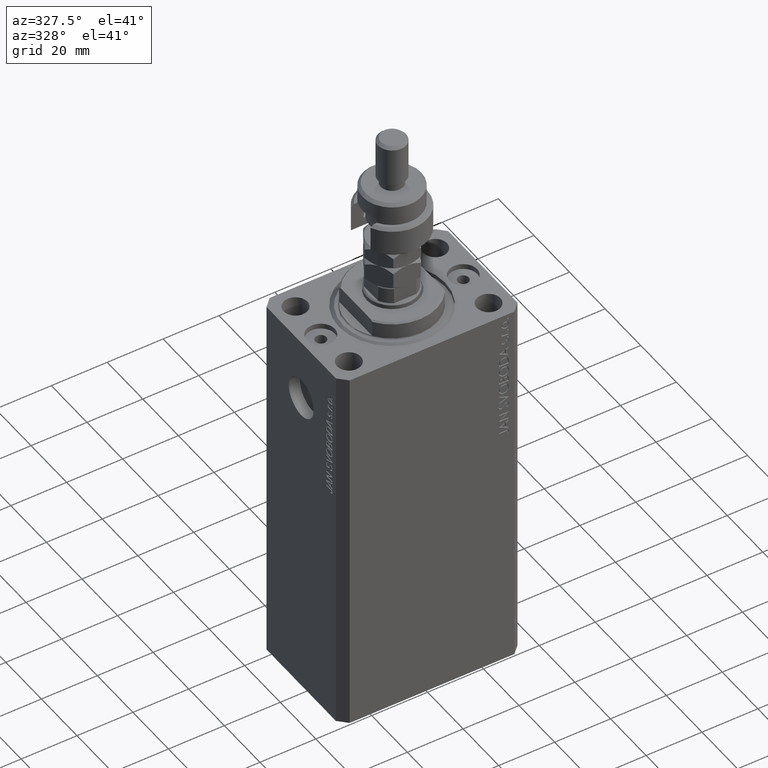
[diagram: clean part render]
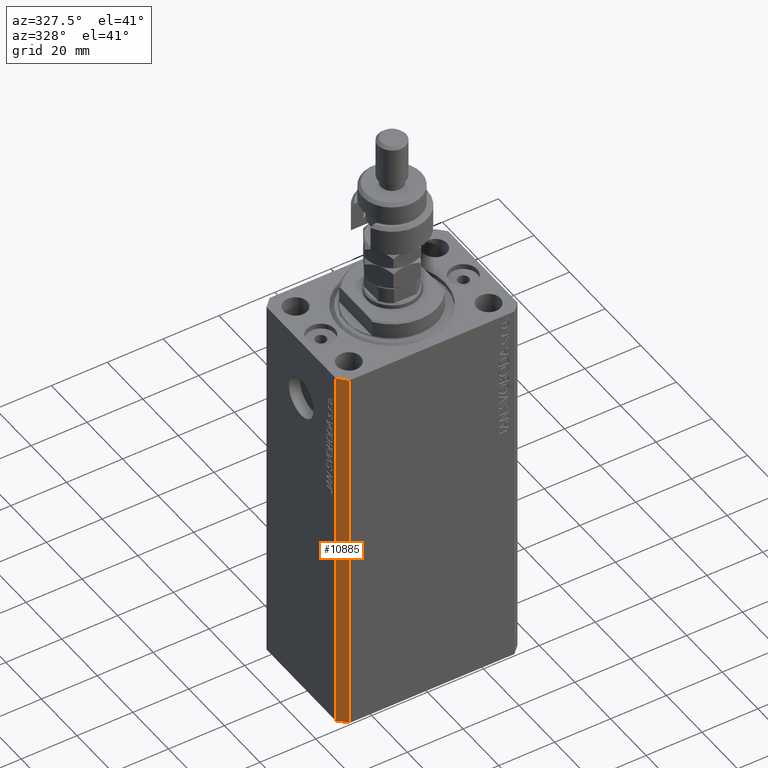
[diagram: same view with one face highlighted and labeled with its STEP entity id]
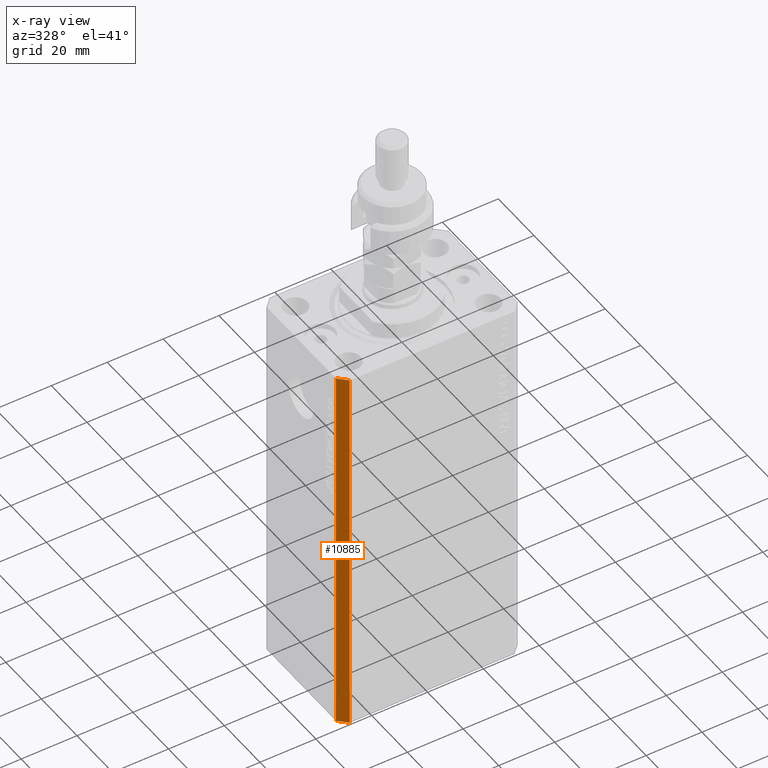
[diagram: x-ray of the same camera — body ghosted, the highlighted face saturated]
A machine part, auxiliary view. The second image highlights one B-rep face of the part: STEP entity #10885.
The next image is the same camera in x-ray: the body ghosted, the highlighted face saturated — about 0% of this face is hidden behind the body in this view.
In plain terms, the highlighted planar face has unit normal (-0.7071, -0.7071, 0).
Its self-contained STEP definition (entity closure, byte-faithful):
#849 = DIRECTION ( 'NONE',  ( 0.7071067811865474617, -0.7071067811865474617, 0.000000000000000000 ) ) ;
#2375 = DIRECTION ( 'NONE',  ( 0.000000000000000000, 0.000000000000000000, 1.000000000000000000 ) ) ;
#2585 = EDGE_CURVE ( 'NONE', #40652, #35811, #6406, .T. ) ;
#3931 = ORIENTED_EDGE ( 'NONE', *, *, #2585, .T. ) ;
#4966 = VECTOR ( 'NONE', #2375, 1000.000000000000000 ) ;
#6406 = LINE ( 'NONE', #6908, #4966 ) ;
#6908 = CARTESIAN_POINT ( 'NONE',  ( -29.49999999999650413, -22.49999999999949907, -137.0000000000000000 ) ) ;
#8014 = VERTEX_POINT ( 'NONE', #49179 ) ;
#9419 = VERTEX_POINT ( 'NONE', #22486 ) ;
#10885 = ADVANCED_FACE ( 'NONE', ( #30455 ), #20560, .T. ) ;
#11066 = CARTESIAN_POINT ( 'NONE',  ( -29.49999999999650413, -22.49999999999949907, -137.0000000000000000 ) ) ;
#11217 = LINE ( 'NONE', #15263, #44896 ) ;
#13018 = EDGE_CURVE ( 'NONE', #8014, #35811, #11217, .T. ) ;
#15263 = CARTESIAN_POINT ( 'NONE',  ( -32.49999999999650413, -19.49999999999949907, 0.000000000000000000 ) ) ;
#18321 = CARTESIAN_POINT ( 'NONE',  ( -32.49999999999650413, -19.49999999999949907, -137.0000000000000000 ) ) ;
#18953 = AXIS2_PLACEMENT_3D ( 'NONE', #31710, #46881, #849 ) ;
#19118 = EDGE_LOOP ( 'NONE', ( #48855, #41092, #47720, #3931 ) ) ;
#20085 = CARTESIAN_POINT ( 'NONE',  ( -32.49999999999650413, -19.49999999999949907, -137.0000000000000000 ) ) ;
#20560 = PLANE ( 'NONE',  #18953 ) ;
#20586 = LINE ( 'NONE', #20085, #45580 ) ;
#22486 = CARTESIAN_POINT ( 'NONE',  ( -32.49999999999650413, -19.49999999999949907, -137.0000000000000000 ) ) ;
#30455 = FACE_OUTER_BOUND ( 'NONE', #19118, .T. ) ;
#30752 = VECTOR ( 'NONE', #34762, 1000.000000000000000 ) ;
#31710 = CARTESIAN_POINT ( 'NONE',  ( -32.49999999999650413, -19.49999999999949907, -137.0000000000000000 ) ) ;
#33756 = LINE ( 'NONE', #18321, #30752 ) ;
#34760 = DIRECTION ( 'NONE',  ( 0.7071067811865474617, -0.7071067811865474617, 0.000000000000000000 ) ) ;
#34762 = DIRECTION ( 'NONE',  ( 0.000000000000000000, 0.000000000000000000, 1.000000000000000000 ) ) ;
#35811 = VERTEX_POINT ( 'NONE', #49932 ) ;
#35828 = EDGE_CURVE ( 'NONE', #9419, #8014, #33756, .T. ) ;
#36267 = DIRECTION ( 'NONE',  ( 0.7071067811865474617, -0.7071067811865474617, 0.000000000000000000 ) ) ;
#40652 = VERTEX_POINT ( 'NONE', #11066 ) ;
#41092 = ORIENTED_EDGE ( 'NONE', *, *, #35828, .F. ) ;
#44896 = VECTOR ( 'NONE', #34760, 1000.000000000000114 ) ;
#45580 = VECTOR ( 'NONE', #36267, 1000.000000000000114 ) ;
#46881 = DIRECTION ( 'NONE',  ( -0.7071067811865475727, -0.7071067811865475727, 0.000000000000000000 ) ) ;
#47720 = ORIENTED_EDGE ( 'NONE', *, *, #48884, .T. ) ;
#48855 = ORIENTED_EDGE ( 'NONE', *, *, #13018, .F. ) ;
#48884 = EDGE_CURVE ( 'NONE', #9419, #40652, #20586, .T. ) ;
#49179 = CARTESIAN_POINT ( 'NONE',  ( -32.49999999999650413, -19.49999999999949907, 0.000000000000000000 ) ) ;
#49932 = CARTESIAN_POINT ( 'NONE',  ( -29.49999999999650413, -22.49999999999949907, 0.000000000000000000 ) ) ;